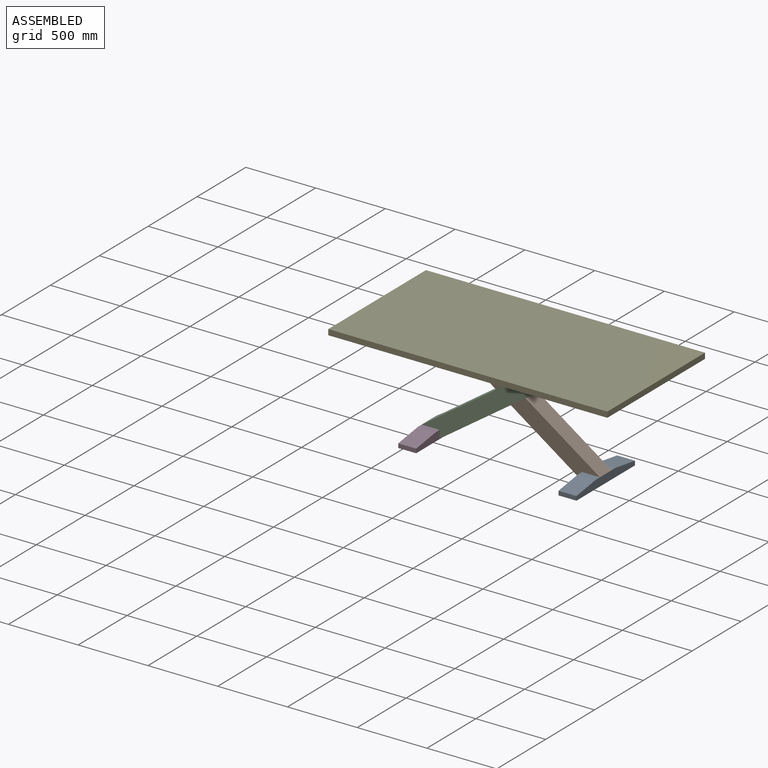
[diagram: assembled view]
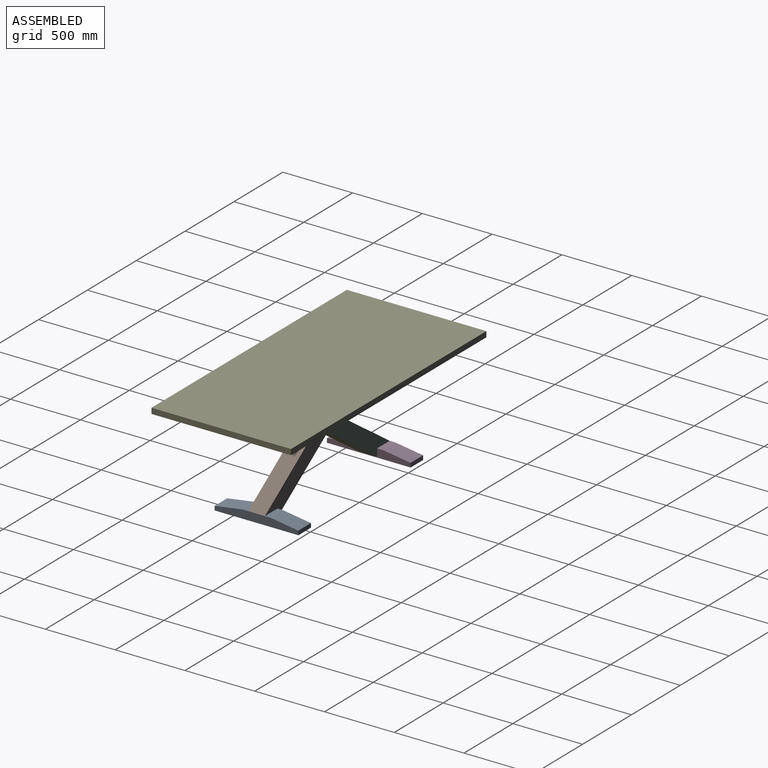
[diagram: assembled view, second angle]
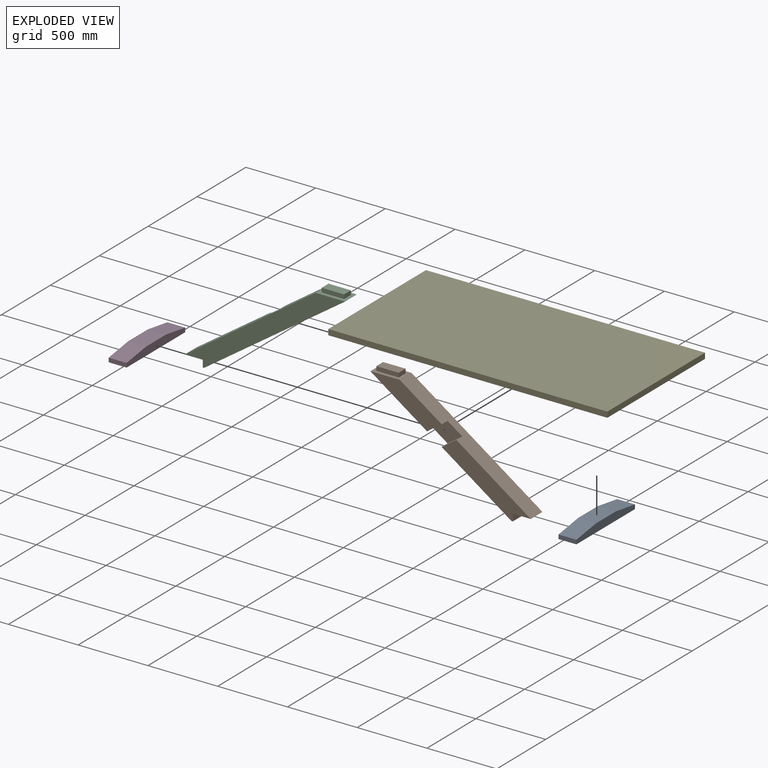
[diagram: exploded view]
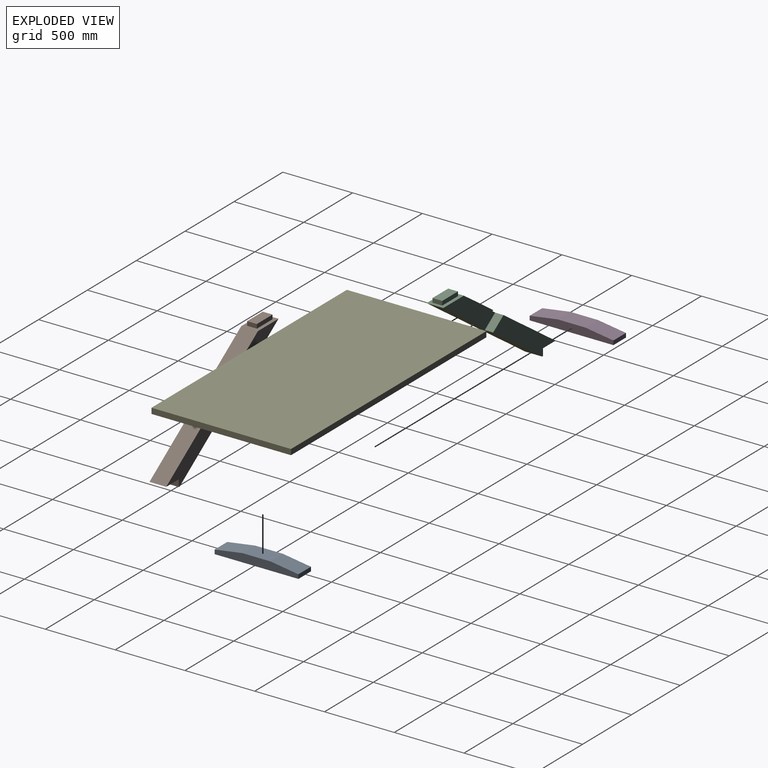
[diagram: exploded view, second angle]
ASSEMBLY  parts=5 mates=5
PART A: 8 faces, bbox 128.6x600x60 mm
  f0: plane 200x128.57mm, normal (0,0,1), area 25714.6mm2, adj f4,f5,f6,f7
  f1: plane 128.57x30mm, normal (0,-1,0), area 3857.2mm2, adj f2,f4,f5,f7
  f2: plane 600x128.57mm, normal (0,0,-1), area 77143.8mm2, adj f1,f3,f4,f5
  f3: plane 128.57x30mm, normal (0,1,0), area 3857.2mm2, adj f2,f4,f5,f6
  f4: plane 600x60mm, normal (1,0,0), area 30000mm2, adj f0,f1,f2,f3,f6,f7
  f5: plane 600x60mm, normal (-1,0,0), area 30000mm2, adj f0,f1,f2,f3,f6,f7
  f6: plane 200x128.57mm, normal (0,0.15,0.99), area 26002.3mm2, adj f0,f3,f4,f5
  f7: plane 200x128.57mm, normal (0,-0.15,0.99), area 26002.3mm2, adj f0,f1,f4,f5
PART B: 17 faces, bbox 1149.3x120x730 mm
  f0: plane 638.57x419.25mm, normal (0,-1,0), area 72441.4mm2, adj f1,f3,f4,f8,f15,f16
  f1: plane 938.57x650mm, normal (0.57,0,0.82), area 129309.4mm2, adj f0,f2,f5,f6,f7,f8,f9,f15
  f2: plane 1149.34x700mm, normal (0,1,0), area 139305.8mm2, adj f1,f3,f4,f5,f15,f16
  f3: plane 1010.77x700mm, normal (-0.57,0,-0.82), area 139848mm2, adj f0,f2,f4,f5,f6,f7,f8,f9
  f4: plane 120x10mm, normal (0,0,-1), area 1200mm2, adj f0,f2,f3,f16
  f5: plane 210.77x120mm, normal (0,0,1), area 14038.5mm2, adj f1,f2,f3,f6,f10,f11,f12,f13
  f6: plane 510.77x280.75mm, normal (0,-1,0), area 51481.6mm2, adj f1,f3,f5,f7
  f7: plane 105.39x72.98mm, normal (0.57,0,-0.82), area 7691.4mm2, adj f1,f3,f6,f9
  f8: plane 105.39x72.98mm, normal (-0.57,0,0.82), area 7691.4mm2, adj f0,f1,f3,f9
  f9: plane 210.77x145.97mm, normal (0,-1,0), area 15382.8mm2, adj f1,f3,f7,f8
  f10: plane 70x30mm, normal (1,0,0), area 2100mm2, adj f5,f11,f13,f14
  f11: plane 160.77x30mm, normal (0,1,0), area 4823.1mm2, adj f5,f10,f12,f14
  f12: plane 70x30mm, normal (-1,0,0), area 2100mm2, adj f5,f11,f13,f14
  f13: plane 160.77x30mm, normal (0,-1,0), area 4823.1mm2, adj f5,f10,f12,f14
  f14: plane 160.77x70mm, normal (0,0,1), area 11253.9mm2, adj f10,f11,f12,f13
  f15: plane 128.57x120mm, normal (0,0,-1), area 15428.7mm2, adj f0,f1,f2,f16
  f16: plane 120x50mm, normal (1,0,0), area 6000mm2, adj f0,f2,f4,f15
PART C: same geometry as B
PART D: same geometry as A
PART E: 16 faces, bbox 2000x1000x40 mm
  f0: plane 2000x40mm, normal (0,1,0), area 80000mm2, adj f1,f7,f8,f10
  f1: plane 1000x40mm, normal (-1,0,0), area 40000mm2, adj f0,f6,f7,f8
  f2: plane 160.77x30mm, normal (0,-1,0), area 4823.1mm2, adj f3,f5,f7,f9
  f3: plane 70x30mm, normal (-1,0,0), area 2100mm2, adj f2,f4,f7,f9
  f4: plane 160.77x30mm, normal (0,1,0), area 4823.1mm2, adj f3,f5,f7,f9
  f5: plane 70x30mm, normal (1,0,0), area 2100mm2, adj f2,f4,f7,f9
  f6: plane 2000x40mm, normal (0,-1,0), area 80000mm2, adj f1,f7,f8,f10
  f7: plane 2000x1000mm, normal (0,0,-1), area 1977492.1mm2, adj f0,f1,f2,f3,f4,f5,f6,f10
  f8: plane 2000x1000mm, normal (0,0,1), area 2000000mm2, adj f0,f1,f6,f10
  f9: plane 160.77x70mm, normal (0,0,-1), area 11253.9mm2, adj f2,f3,f4,f5
  f10: plane 1000x40mm, normal (1,0,0), area 40000mm2, adj f0,f6,f7,f8
  f11: plane 160.77x30mm, normal (0,-1,0), area 4823.1mm2, adj f7,f12,f14,f15
  f12: plane 70x30mm, normal (1,0,0), area 2100mm2, adj f7,f11,f13,f15
  f13: plane 160.77x30mm, normal (0,1,0), area 4823.1mm2, adj f7,f12,f14,f15
  f14: plane 70x30mm, normal (-1,0,0), area 2100mm2, adj f7,f11,f13,f15
  f15: plane 160.77x70mm, normal (0,0,-1), area 11253.9mm2, adj f11,f12,f13,f14
PLACE A at identity
PLACE B at identity
PLACE C rot(axis=(0,0,1),180deg) t=(-1000,120,0)mm
PLACE D t=(-1148.57,0,0)mm
PLACE E at identity
MATE fastened D.f0 <-> C.f15  axis (0,0,1) through (-1074.29,60,50)mm
MATE fastened A.f0 <-> B.f15  axis (0,0,1) through (74.29,60,50)mm
MATE fastened C.f14 <-> E.f15  axis (0,0,1) through (-94.61,60,730)mm
MATE fastened C.f9 <-> B.f9  axis (0,1,0) through (-500,60,419.25)mm
MATE fastened B.f14 <-> E.f9  axis (0,0,1) through (-905.39,60,730)mm
